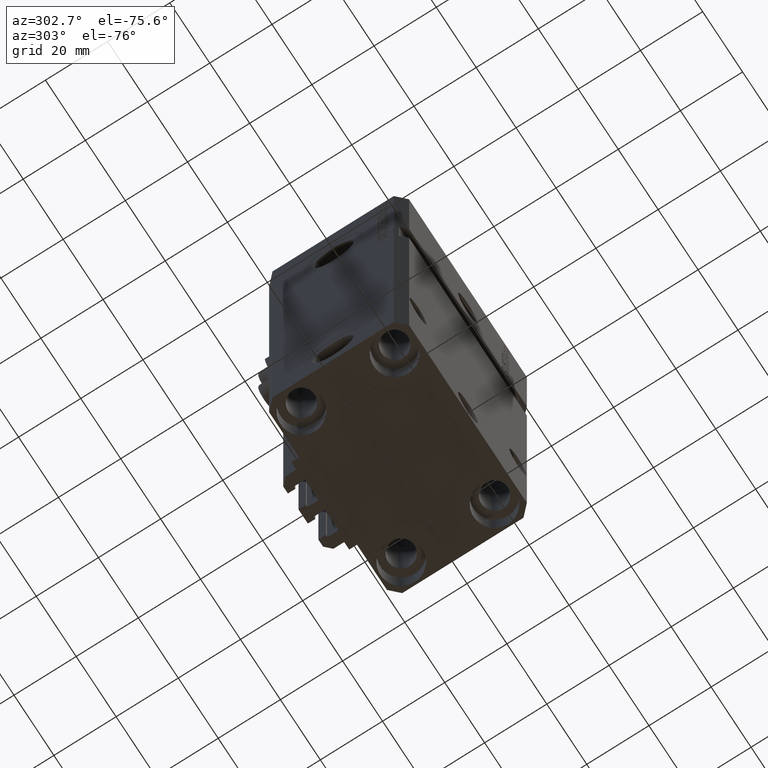
[diagram: clean part render]
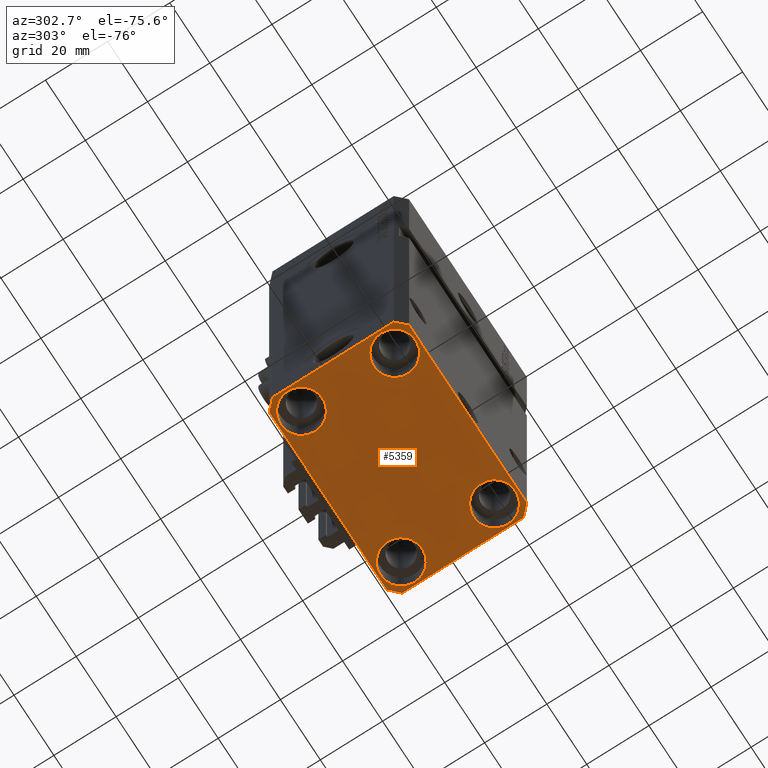
[diagram: same view with one face highlighted and labeled with its STEP entity id]
A machine part, auxiliary view. The second image highlights one B-rep face of the part: STEP entity #5359.
In plain terms, the highlighted planar face has unit normal (0, 0, 1).
Its self-contained STEP definition (entity closure, byte-faithful):
#671 = EDGE_CURVE ( 'NONE', #17055, #41154, #10767, .T. ) ;
#1861 = ORIENTED_EDGE ( 'NONE', *, *, #37548, .F. ) ;
#2090 = DIRECTION ( 'NONE',  ( -0.000000000000000000, -0.000000000000000000, 1.000000000000000000 ) ) ;
#2222 = VECTOR ( 'NONE', #25346, 1000.000000000000114 ) ;
#2295 = VECTOR ( 'NONE', #33637, 1000.000000000000000 ) ;
#2344 = DIRECTION ( 'NONE',  ( 1.000000000000000000, 0.000000000000000000, 0.000000000000000000 ) ) ;
#2673 = EDGE_CURVE ( 'NONE', #36241, #17359, #41947, .T. ) ;
#2727 = FACE_OUTER_BOUND ( 'NONE', #47522, .T. ) ;
#3634 = VERTEX_POINT ( 'NONE', #35706 ) ;
#4091 = DIRECTION ( 'NONE',  ( 0.7071067811865474617, -0.7071067811865474617, 0.000000000000000000 ) ) ;
#4111 = LINE ( 'NONE', #15083, #29947 ) ;
#4642 = VERTEX_POINT ( 'NONE', #14031 ) ;
#5066 = EDGE_CURVE ( 'NONE', #4642, #22459, #11037, .T. ) ;
#5359 = ADVANCED_FACE ( 'NONE', ( #40845, #14453, #6474, #10222, #2727 ), #21663, .F. ) ;
#5982 = DIRECTION ( 'NONE',  ( -0.000000000000000000, -0.000000000000000000, 1.000000000000000000 ) ) ;
#6215 = AXIS2_PLACEMENT_3D ( 'NONE', #41366, #6991, #22906 ) ;
#6474 = FACE_BOUND ( 'NONE', #32288, .T. ) ;
#6722 = CARTESIAN_POINT ( 'NONE',  ( 0.000000000000000000, 0.000000000000000000, -137.0000000000000000 ) ) ;
#6734 = AXIS2_PLACEMENT_3D ( 'NONE', #32757, #9375, #24539 ) ;
#6991 = DIRECTION ( 'NONE',  ( -0.000000000000000000, -0.000000000000000000, 1.000000000000000000 ) ) ;
#7748 = VECTOR ( 'NONE', #34379, 1000.000000000000000 ) ;
#8098 = DIRECTION ( 'NONE',  ( -1.000000000000000000, -2.352167425053553784E-16, 0.000000000000000000 ) ) ;
#8482 = CARTESIAN_POINT ( 'NONE',  ( 24.99999999999999645, 15.00000000000000888, -137.0000000000000000 ) ) ;
#8590 = VECTOR ( 'NONE', #4091, 1000.000000000000114 ) ;
#8656 = EDGE_CURVE ( 'NONE', #41756, #38267, #10753, .T. ) ;
#9001 = ORIENTED_EDGE ( 'NONE', *, *, #48471, .T. ) ;
#9375 = DIRECTION ( 'NONE',  ( -0.000000000000000000, -0.000000000000000000, 1.000000000000000000 ) ) ;
#9550 = ORIENTED_EDGE ( 'NONE', *, *, #35530, .F. ) ;
#9797 = DIRECTION ( 'NONE',  ( -0.000000000000000000, -0.000000000000000000, 1.000000000000000000 ) ) ;
#10144 = DIRECTION ( 'NONE',  ( 0.000000000000000000, -1.000000000000000000, 0.000000000000000000 ) ) ;
#10200 = EDGE_CURVE ( 'NONE', #33988, #36241, #44263, .T. ) ;
#10222 = FACE_BOUND ( 'NONE', #22321, .T. ) ;
#10379 = ORIENTED_EDGE ( 'NONE', *, *, #10200, .F. ) ;
#10753 = LINE ( 'NONE', #38134, #2295 ) ;
#10767 = CIRCLE ( 'NONE', #33813, 6.749999999977465137 ) ;
#11037 = CIRCLE ( 'NONE', #45914, 6.750000000041541881 ) ;
#11916 = VECTOR ( 'NONE', #10144, 1000.000000000000000 ) ;
#12438 = CARTESIAN_POINT ( 'NONE',  ( 29.49999999999650413, -22.49999999999949196, -137.0000000000000000 ) ) ;
#12859 = CARTESIAN_POINT ( 'NONE',  ( -31.75000000002253842, 15.00000000000000000, -137.0000000000000000 ) ) ;
#12934 = EDGE_CURVE ( 'NONE', #30462, #37544, #42242, .T. ) ;
#13023 = ORIENTED_EDGE ( 'NONE', *, *, #21430, .T. ) ;
#13141 = CARTESIAN_POINT ( 'NONE',  ( -32.49999999999650413, 19.49999999999949907, -137.0000000000000000 ) ) ;
#13382 = CARTESIAN_POINT ( 'NONE',  ( 31.74999999997746869, -15.00000000000000000, -137.0000000000000000 ) ) ;
#13430 = DIRECTION ( 'NONE',  ( -0.7071067811865352493, 0.7071067811865597852, 0.000000000000000000 ) ) ;
#14031 = CARTESIAN_POINT ( 'NONE',  ( -18.24999999995845812, -15.00000000000000000, -137.0000000000000000 ) ) ;
#14453 = FACE_BOUND ( 'NONE', #31992, .T. ) ;
#15083 = CARTESIAN_POINT ( 'NONE',  ( 29.49999999999707967, 22.49999999999951328, -137.0000000000000000 ) ) ;
#15271 = ORIENTED_EDGE ( 'NONE', *, *, #2673, .F. ) ;
#15914 = VERTEX_POINT ( 'NONE', #35430 ) ;
#16146 = CIRCLE ( 'NONE', #40028, 6.749999999958452790 ) ;
#17055 = VERTEX_POINT ( 'NONE', #13382 ) ;
#17359 = VERTEX_POINT ( 'NONE', #43111 ) ;
#17885 = ORIENTED_EDGE ( 'NONE', *, *, #35418, .F. ) ;
#17990 = VERTEX_POINT ( 'NONE', #12859 ) ;
#17995 = DIRECTION ( 'NONE',  ( 1.000000000000000000, 0.000000000000000000, 0.000000000000000000 ) ) ;
#18322 = AXIS2_PLACEMENT_3D ( 'NONE', #18823, #30261, #41500 ) ;
#18817 = EDGE_CURVE ( 'NONE', #41154, #17055, #29578, .T. ) ;
#18823 = CARTESIAN_POINT ( 'NONE',  ( -25.00000000000000355, 15.00000000000000000, -137.0000000000000000 ) ) ;
#19053 = CARTESIAN_POINT ( 'NONE',  ( -29.49999999999650413, 22.49999999999949907, -137.0000000000000000 ) ) ;
#19195 = CARTESIAN_POINT ( 'NONE',  ( -29.49999999999650413, -22.49999999999949907, -137.0000000000000000 ) ) ;
#20798 = CARTESIAN_POINT ( 'NONE',  ( 18.25000000002253842, -15.00000000000000000, -137.0000000000000000 ) ) ;
#20919 = DIRECTION ( 'NONE',  ( 1.000000000000000000, 0.000000000000000000, 0.000000000000000000 ) ) ;
#21430 = EDGE_CURVE ( 'NONE', #37544, #30462, #16146, .T. ) ;
#21663 = PLANE ( 'NONE',  #33970 ) ;
#21683 = CARTESIAN_POINT ( 'NONE',  ( -18.24999999997747224, 15.00000000000000000, -137.0000000000000000 ) ) ;
#21720 = CARTESIAN_POINT ( 'NONE',  ( -25.00000000000000355, -15.00000000000000000, -137.0000000000000000 ) ) ;
#22321 = EDGE_LOOP ( 'NONE', ( #9001, #23538 ) ) ;
#22459 = VERTEX_POINT ( 'NONE', #43308 ) ;
#22508 = ORIENTED_EDGE ( 'NONE', *, *, #39298, .F. ) ;
#22906 = DIRECTION ( 'NONE',  ( 1.000000000000000000, 0.000000000000000000, 0.000000000000000000 ) ) ;
#22921 = LINE ( 'NONE', #19195, #7748 ) ;
#23167 = CARTESIAN_POINT ( 'NONE',  ( 31.74999999995845101, 15.00000000000000888, -137.0000000000000000 ) ) ;
#23238 = ORIENTED_EDGE ( 'NONE', *, *, #5066, .T. ) ;
#23251 = CARTESIAN_POINT ( 'NONE',  ( -32.49999999999650413, -19.49999999999949907, -137.0000000000000000 ) ) ;
#23538 = ORIENTED_EDGE ( 'NONE', *, *, #25606, .T. ) ;
#23647 = DIRECTION ( 'NONE',  ( -0.000000000000000000, -0.000000000000000000, 1.000000000000000000 ) ) ;
#24539 = DIRECTION ( 'NONE',  ( 1.000000000000000000, 0.000000000000000000, 0.000000000000000000 ) ) ;
#24612 = LINE ( 'NONE', #28107, #2222 ) ;
#24785 = AXIS2_PLACEMENT_3D ( 'NONE', #40701, #2090, #2344 ) ;
#25346 = DIRECTION ( 'NONE',  ( -0.7071067811865474617, -0.7071067811865474617, 0.000000000000000000 ) ) ;
#25606 = EDGE_CURVE ( 'NONE', #38905, #17990, #35360, .T. ) ;
#26153 = DIRECTION ( 'NONE',  ( 1.334402673828349134E-14, 1.000000000000000000, 0.000000000000000000 ) ) ;
#26970 = ORIENTED_EDGE ( 'NONE', *, *, #671, .T. ) ;
#27063 = VECTOR ( 'NONE', #13430, 1000.000000000000000 ) ;
#28107 = CARTESIAN_POINT ( 'NONE',  ( -29.49999999999650413, 22.49999999999949907, -137.0000000000000000 ) ) ;
#28738 = ORIENTED_EDGE ( 'NONE', *, *, #47963, .F. ) ;
#29507 = CARTESIAN_POINT ( 'NONE',  ( -32.49999999999650413, -19.49999999999949907, -137.0000000000000000 ) ) ;
#29578 = CIRCLE ( 'NONE', #24785, 6.749999999977465137 ) ;
#29947 = VECTOR ( 'NONE', #8098, 1000.000000000000000 ) ;
#30095 = DIRECTION ( 'NONE',  ( -0.000000000000000000, -0.000000000000000000, 1.000000000000000000 ) ) ;
#30261 = DIRECTION ( 'NONE',  ( -0.000000000000000000, -0.000000000000000000, 1.000000000000000000 ) ) ;
#30381 = CARTESIAN_POINT ( 'NONE',  ( 32.49999999999651124, -19.49999999999949196, -137.0000000000000000 ) ) ;
#30462 = VERTEX_POINT ( 'NONE', #48055 ) ;
#30551 = CARTESIAN_POINT ( 'NONE',  ( 32.49999999999651124, -19.49999999999949196, -137.0000000000000000 ) ) ;
#31327 = ORIENTED_EDGE ( 'NONE', *, *, #12934, .T. ) ;
#31979 = EDGE_LOOP ( 'NONE', ( #41307, #23238 ) ) ;
#31992 = EDGE_LOOP ( 'NONE', ( #47283, #26970 ) ) ;
#32288 = EDGE_LOOP ( 'NONE', ( #31327, #13023 ) ) ;
#32757 = CARTESIAN_POINT ( 'NONE',  ( -25.00000000000000355, 15.00000000000000000, -137.0000000000000000 ) ) ;
#33134 = LINE ( 'NONE', #30381, #33930 ) ;
#33582 = DIRECTION ( 'NONE',  ( 1.000000000000000000, 0.000000000000000000, 0.000000000000000000 ) ) ;
#33637 = DIRECTION ( 'NONE',  ( 0.7071067811865483499, 0.7071067811865466846, 0.000000000000000000 ) ) ;
#33813 = AXIS2_PLACEMENT_3D ( 'NONE', #43598, #5982, #20919 ) ;
#33930 = VECTOR ( 'NONE', #26153, 1000.000000000000000 ) ;
#33970 = AXIS2_PLACEMENT_3D ( 'NONE', #6722, #37111, #44831 ) ;
#33988 = VERTEX_POINT ( 'NONE', #34312 ) ;
#34312 = CARTESIAN_POINT ( 'NONE',  ( -32.49999999999650413, 19.49999999999949907, -137.0000000000000000 ) ) ;
#34379 = DIRECTION ( 'NONE',  ( 1.000000000000000000, 1.176083712526788232E-16, 0.000000000000000000 ) ) ;
#34529 = DIRECTION ( 'NONE',  ( 1.000000000000000000, 0.000000000000000000, 0.000000000000000000 ) ) ;
#35360 = CIRCLE ( 'NONE', #6734, 6.750000000022533087 ) ;
#35418 = EDGE_CURVE ( 'NONE', #38267, #15914, #33134, .T. ) ;
#35430 = CARTESIAN_POINT ( 'NONE',  ( 32.49999999999702993, 19.49999999999945999, -137.0000000000000000 ) ) ;
#35530 = EDGE_CURVE ( 'NONE', #3634, #35587, #4111, .T. ) ;
#35587 = VERTEX_POINT ( 'NONE', #19053 ) ;
#35706 = CARTESIAN_POINT ( 'NONE',  ( 29.49999999999707967, 22.49999999999951328, -137.0000000000000000 ) ) ;
#36241 = VERTEX_POINT ( 'NONE', #29507 ) ;
#36338 = LINE ( 'NONE', #40563, #27063 ) ;
#37111 = DIRECTION ( 'NONE',  ( 0.000000000000000000, 0.000000000000000000, 1.000000000000000000 ) ) ;
#37544 = VERTEX_POINT ( 'NONE', #23167 ) ;
#37548 = EDGE_CURVE ( 'NONE', #17359, #41756, #22921, .T. ) ;
#38134 = CARTESIAN_POINT ( 'NONE',  ( 29.49999999999650413, -22.49999999999949196, -137.0000000000000000 ) ) ;
#38267 = VERTEX_POINT ( 'NONE', #30551 ) ;
#38905 = VERTEX_POINT ( 'NONE', #21683 ) ;
#39040 = AXIS2_PLACEMENT_3D ( 'NONE', #45059, #30095, #33582 ) ;
#39060 = EDGE_CURVE ( 'NONE', #22459, #4642, #46798, .T. ) ;
#39298 = EDGE_CURVE ( 'NONE', #35587, #33988, #24612, .T. ) ;
#40028 = AXIS2_PLACEMENT_3D ( 'NONE', #8482, #23647, #34529 ) ;
#40563 = CARTESIAN_POINT ( 'NONE',  ( 32.49999999999702993, 19.49999999999945999, -137.0000000000000000 ) ) ;
#40701 = CARTESIAN_POINT ( 'NONE',  ( 25.00000000000000355, -15.00000000000000000, -137.0000000000000000 ) ) ;
#40845 = FACE_BOUND ( 'NONE', #31979, .T. ) ;
#41154 = VERTEX_POINT ( 'NONE', #20798 ) ;
#41307 = ORIENTED_EDGE ( 'NONE', *, *, #39060, .T. ) ;
#41366 = CARTESIAN_POINT ( 'NONE',  ( -25.00000000000000355, -15.00000000000000000, -137.0000000000000000 ) ) ;
#41500 = DIRECTION ( 'NONE',  ( 1.000000000000000000, 0.000000000000000000, 0.000000000000000000 ) ) ;
#41756 = VERTEX_POINT ( 'NONE', #12438 ) ;
#41947 = LINE ( 'NONE', #23251, #8590 ) ;
#42242 = CIRCLE ( 'NONE', #39040, 6.749999999958452790 ) ;
#43111 = CARTESIAN_POINT ( 'NONE',  ( -29.49999999999650413, -22.49999999999949907, -137.0000000000000000 ) ) ;
#43308 = CARTESIAN_POINT ( 'NONE',  ( -31.75000000004154899, -15.00000000000000000, -137.0000000000000000 ) ) ;
#43598 = CARTESIAN_POINT ( 'NONE',  ( 25.00000000000000355, -15.00000000000000000, -137.0000000000000000 ) ) ;
#44263 = LINE ( 'NONE', #13141, #11916 ) ;
#44831 = DIRECTION ( 'NONE',  ( 1.000000000000000000, 0.000000000000000000, -0.000000000000000000 ) ) ;
#45059 = CARTESIAN_POINT ( 'NONE',  ( 24.99999999999999645, 15.00000000000000888, -137.0000000000000000 ) ) ;
#45400 = CIRCLE ( 'NONE', #18322, 6.750000000022533087 ) ;
#45914 = AXIS2_PLACEMENT_3D ( 'NONE', #21720, #9797, #17995 ) ;
#46798 = CIRCLE ( 'NONE', #6215, 6.750000000041541881 ) ;
#47283 = ORIENTED_EDGE ( 'NONE', *, *, #18817, .T. ) ;
#47522 = EDGE_LOOP ( 'NONE', ( #9550, #28738, #17885, #48611, #1861, #15271, #10379, #22508 ) ) ;
#47963 = EDGE_CURVE ( 'NONE', #15914, #3634, #36338, .T. ) ;
#48055 = CARTESIAN_POINT ( 'NONE',  ( 18.25000000004154543, 15.00000000000000888, -137.0000000000000000 ) ) ;
#48471 = EDGE_CURVE ( 'NONE', #17990, #38905, #45400, .T. ) ;
#48611 = ORIENTED_EDGE ( 'NONE', *, *, #8656, .F. ) ;